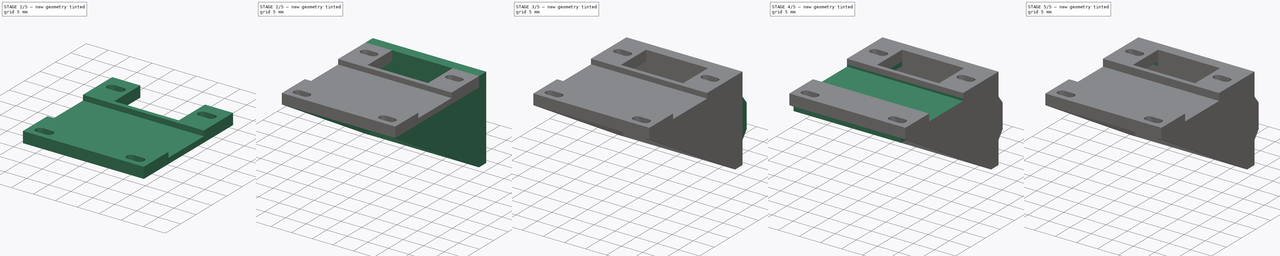
[diagram: build sequence overview — one tinted view per stage of 5, left to right]
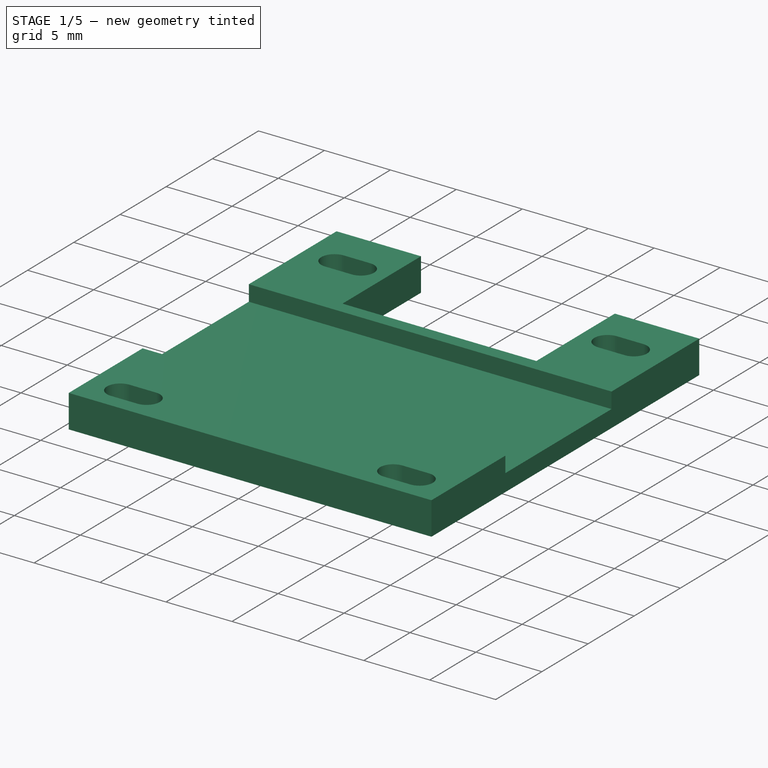
[diagram: stage 1 of 5 — iso view after this stage's code; geometry added in this stage tinted green]
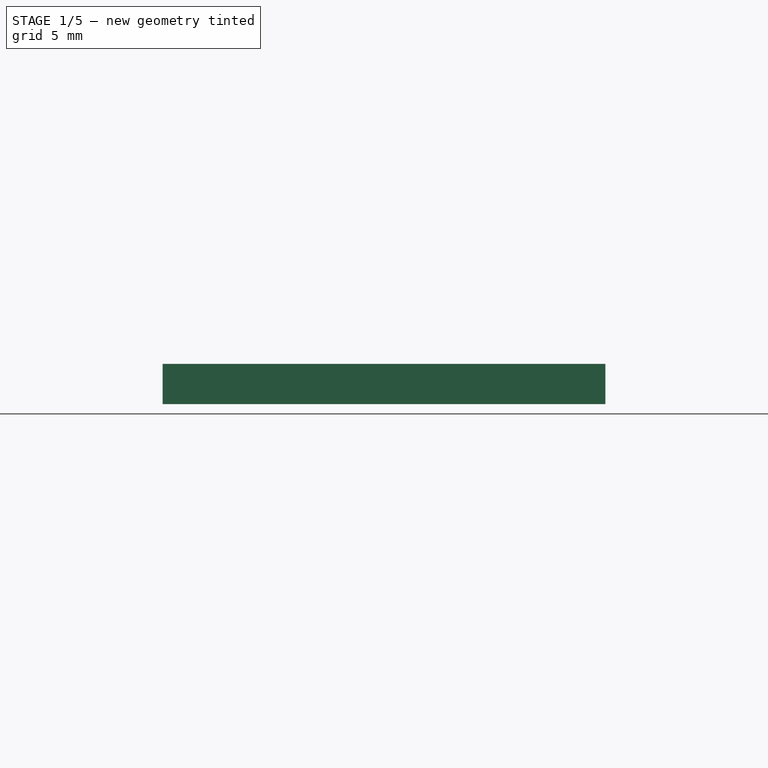
[diagram: stage 1 of 5 — front view after this stage's code; geometry added in this stage tinted green]
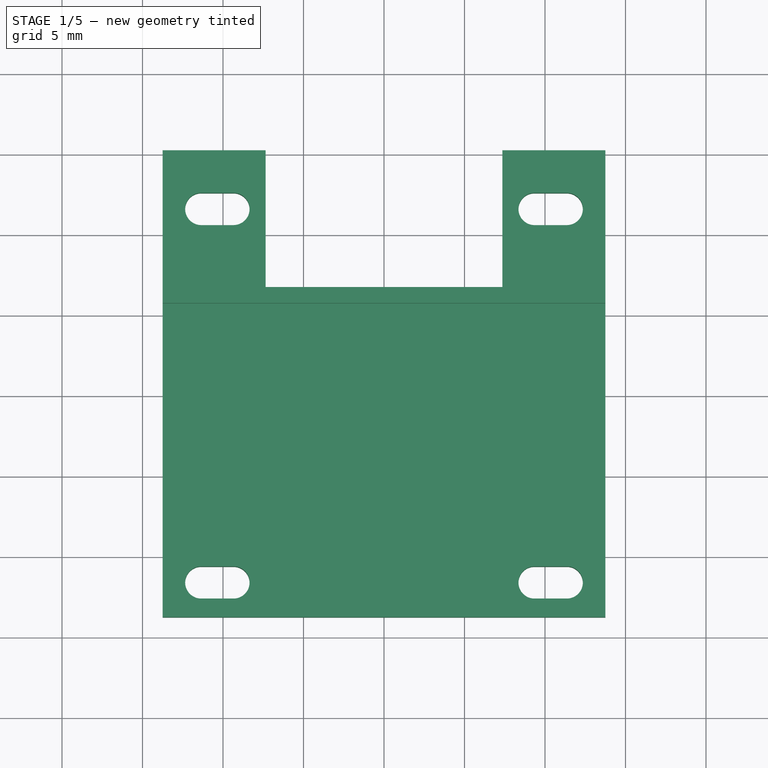
[diagram: stage 1 of 5 — top view after this stage's code; geometry added in this stage tinted green]
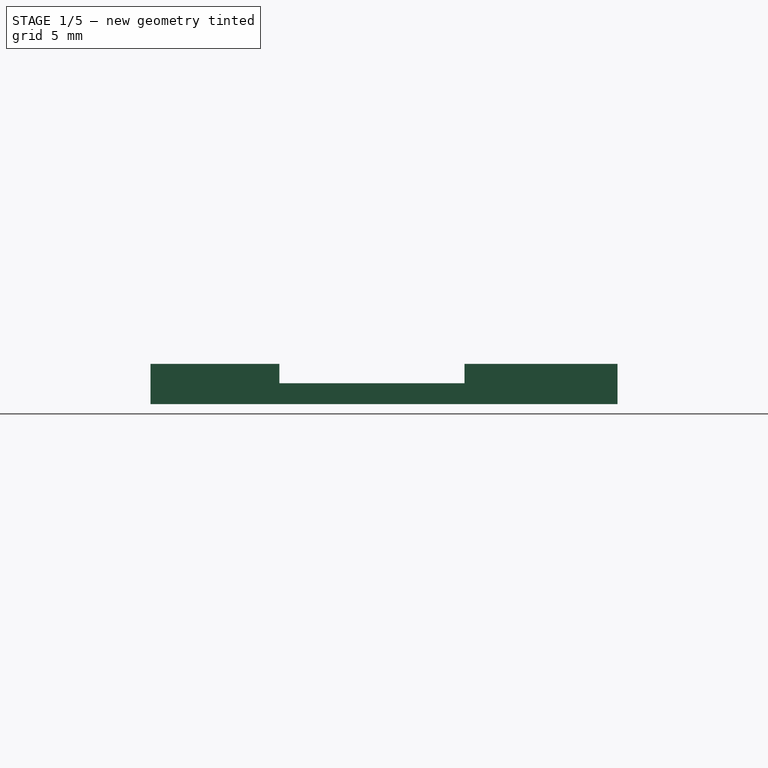
[diagram: stage 1 of 5 — right view after this stage's code; geometry added in this stage tinted green]
FCSTD DOCUMENT  (FreeCAD 0.20R29603 (Git))
Label: suporte-display-led
License: All rights reserved
LicenseURL: http://en.wikipedia.org/wiki/All_rights_reserved
objects: Sketcher::SketchObject×9, PartDesign::Pad×8, PartDesign::Pocket×6, PartDesign::Chamfer×1, PartDesign::Body×1
note: 40 computed .brp shape members not serialized (recipe doc carries the construction recipe); baked Part::Feature solids carry a one-line shape summary decoded from their .brp

FEATURE [Sketcher::SketchObject] Sketch
  FullyConstrained = true
  MapMode = 5
  Support = -> [XY_Plane]
  sketch-geometry (36):
    g0: LineSegment StartX=13.75 StartY=13.75 StartZ=0 EndX=13.75 EndY=-13.75 EndZ=0
    g1: LineSegment StartX=13.75 StartY=-13.75 StartZ=0 EndX=-13.75 EndY=-13.75 EndZ=0
    g2: LineSegment StartX=-13.75 StartY=-13.75 StartZ=0 EndX=-13.75 EndY=13.75 EndZ=0
    g3: LineSegment StartX=-13.75 StartY=13.75 StartZ=0 EndX=-7.35 EndY=13.75 EndZ=0
    g4: LineSegment StartX=-7.35 StartY=13.75 StartZ=0 EndX=-7.35 EndY=6.75 EndZ=0
    g5: LineSegment StartX=-7.35 StartY=6.75 StartZ=0 EndX=7.35 EndY=6.75 EndZ=0
    g6: LineSegment StartX=7.35 StartY=6.75 StartZ=0 EndX=7.35 EndY=13.75 EndZ=0
    g7: LineSegment StartX=7.35 StartY=13.75 StartZ=0 EndX=13.75 EndY=13.75 EndZ=0
    g8: ArcOfCircle CenterX=-11.35 CenterY=11.6 CenterZ=0 NormalX=0 NormalY=0 NormalZ=1 AngleXU=0 Radius=1 StartAngle=1.5708 EndAngle=4.71239
    g9: ArcOfCircle CenterX=-9.35 CenterY=11.6 CenterZ=0 NormalX=0 NormalY=0 NormalZ=1 AngleXU=0 Radius=1 StartAngle=4.71239 EndAngle=7.85398
    g10: LineSegment StartX=-11.35 StartY=10.6 StartZ=0 EndX=-9.35 EndY=10.6 EndZ=0
    g11: LineSegment StartX=-9.35 StartY=12.6 StartZ=0 EndX=-11.35 EndY=12.6 EndZ=0
    g12: ArcOfCircle CenterX=9.35 CenterY=11.6 CenterZ=0 NormalX=0 NormalY=0 NormalZ=1 AngleXU=0 Radius=1 StartAngle=1.5708 EndAngle=4.71239
    g13: ArcOfCircle CenterX=11.35 CenterY=11.6 CenterZ=0 NormalX=0 NormalY=0 NormalZ=1 AngleXU=0 Radius=1 StartAngle=4.71239 EndAngle=7.85398
    g14: LineSegment StartX=9.35 StartY=10.6 StartZ=0 EndX=11.35 EndY=10.6 EndZ=0
    g15: LineSegment StartX=11.35 StartY=12.6 StartZ=0 EndX=9.35 EndY=12.6 EndZ=0
    g16: ArcOfCircle CenterX=-11.35 CenterY=-11.6 CenterZ=0 NormalX=0 NormalY=0 NormalZ=1 AngleXU=0 Radius=1 StartAngle=1.5708 EndAngle=4.71239
    g17: ArcOfCircle CenterX=-9.35 CenterY=-11.6 CenterZ=0 NormalX=0 NormalY=0 NormalZ=1 AngleXU=0 Radius=1 StartAngle=4.71239 EndAngle=7.85398
    g18: LineSegment StartX=-11.35 StartY=-12.6 StartZ=0 EndX=-9.35 EndY=-12.6 EndZ=0
    g19: LineSegment StartX=-9.35 StartY=-10.6 StartZ=0 EndX=-11.35 EndY=-10.6 EndZ=0
    g20: ArcOfCircle CenterX=9.35 CenterY=-11.6 CenterZ=0 NormalX=0 NormalY=0 NormalZ=1 AngleXU=0 Radius=1 StartAngle=1.5708 EndAngle=4.71239
    g21: ArcOfCircle CenterX=11.35 CenterY=-11.6 CenterZ=0 NormalX=0 NormalY=0 NormalZ=1 AngleXU=0 Radius=1 StartAngle=4.71239 EndAngle=7.85398
    g22: LineSegment StartX=9.35 StartY=-12.6 StartZ=0 EndX=11.35 EndY=-12.6 EndZ=0
    g23: LineSegment StartX=11.35 StartY=-10.6 StartZ=0 EndX=9.35 EndY=-10.6 EndZ=0
    g24: LineSegment StartX=-11.35 StartY=11.6 StartZ=0 EndX=-10.35 EndY=11.6 EndZ=0
    g25: LineSegment StartX=-10.35 StartY=11.6 StartZ=0 EndX=-9.35 EndY=11.6 EndZ=0
    g26: LineSegment StartX=-11.35 StartY=-11.6 StartZ=0 EndX=-10.35 EndY=-11.6 EndZ=0
    g27: LineSegment StartX=-10.35 StartY=-11.6 StartZ=0 EndX=-9.35 EndY=-11.6 EndZ=0
    g28: LineSegment StartX=9.35 StartY=-11.6 StartZ=0 EndX=10.35 EndY=-11.6 EndZ=0
    g29: LineSegment StartX=11.35 StartY=-11.6 StartZ=0 EndX=10.35 EndY=-11.6 EndZ=0
    g30: LineSegment StartX=9.35 StartY=11.6 StartZ=0 EndX=10.35 EndY=11.6 EndZ=0
    g31: LineSegment StartX=10.35 StartY=11.6 StartZ=0 EndX=11.35 EndY=11.6 EndZ=0
    g32: LineSegment StartX=-10.35 StartY=11.6 StartZ=0 EndX=10.35 EndY=11.6 EndZ=0
    g33: LineSegment StartX=10.35 StartY=11.6 StartZ=0 EndX=10.35 EndY=-11.6 EndZ=0
    g34: LineSegment StartX=10.35 StartY=-11.6 StartZ=0 EndX=-10.35 EndY=-11.6 EndZ=0
    g35: LineSegment StartX=-10.35 StartY=-11.6 StartZ=0 EndX=-10.35 EndY=11.6 EndZ=0
  constraints (90):
    c: Coincident(g0,g1)
    c: Coincident(g1,g2)
    c: Vertical(g0)
    c: Coincident(g3,g2)
    c: Horizontal(g3)
    c: Coincident(g4,g3)
    c: Vertical(g4)
    c: Coincident(g6,g5)
    c: Vertical(g6)
    c: Coincident(g7,g0)
    c: Horizontal(g7)
    c: Equal(g4,g6)
    c: Symmetric(g1,g0,g-2)
    c: Symmetric(g1,g2,g-1)
    c: Coincident(g5,g4)
    c: Coincident(g6,g7)
    c: Symmetric(g4,g5,g-2)
    c: DistanceY(g2,g2) = 27.5
    c: Equal(g1,g2)
    c: Tangent(g8,g10) = -1.5708
    c: Tangent(g10,g9) = -1.5708
    c: Tangent(g9,g11) = -1.5708
    c: Tangent(g11,g8) = -1.5708
    c: Equal(g8,g9)
    c: Horizontal(g10)
    c: Tangent(g12,g14) = -1.5708
    c: Tangent(g14,g13) = -1.5708
    c: Tangent(g13,g15) = -1.5708
    c: Tangent(g15,g12) = -1.5708
    c: Equal(g12,g13)
    c: Horizontal(g14)
    c: Tangent(g16,g18) = -1.5708
    c: Tangent(g18,g17) = -1.5708
    c: Tangent(g17,g19) = -1.5708
    c: Tangent(g19,g16) = -1.5708
    c: Equal(g16,g17)
    c: Tangent(g20,g22) = -1.5708
    c: Tangent(g22,g21) = -1.5708
    c: Tangent(g21,g23) = -1.5708
    c: Tangent(g23,g20) = -1.5708
    c: Equal(g20,g21)
    c: Horizontal(g22)
    c: Horizontal(g18)
    c: Equal(g8,g16)
    c: Equal(g16,g21)
    c: Equal(g21,g13)
    c: Coincident(g24,g8)
    c: Coincident(g25,g24)
    c: Coincident(g25,g9)
    c: Coincident(g26,g16)
    c: Coincident(g27,g26)
    c: Coincident(g27,g17)
    c: Coincident(g28,g20)
    c: Coincident(g29,g21)
    c: Coincident(g29,g28)
    c: Coincident(g30,g12)
    c: Coincident(g31,g30)
    c: Coincident(g31,g13)
    c: Equal(g31,g30)
    c: Equal(g30,g28)
    c: Equal(g28,g29)
    c: Equal(g29,g27)
    c: Equal(g27,g26)
    c: Equal(g26,g24)
    c: Equal(g24,g25)
    c: Horizontal(g30)
    c: Horizontal(g25)
    c: Horizontal(g27)
    c: Horizontal(g28)
    c: Coincident(g32,g33)
    c: Coincident(g33,g34)
    c: Coincident(g34,g35)
    c: Coincident(g35,g32)
    c: Horizontal(g32)
    c: Horizontal(g34)
    c: Vertical(g33)
    c: Vertical(g35)
    c: Coincident(g32,g24)
    c: PointOnObject(g30,g33)
    c: PointOnObject(g28,g34)
    c: PointOnObject(g28,g33)
    c: PointOnObject(g26,g34)
    c: Symmetric(g24,g30,g-2)
    c: Symmetric(g24,g26,g-1)
    c: DistanceY(g8,g8) = 2
    c: DistanceX(g11,g11) = 2
    c: DistanceX(g34,g34) = 20.7
    c: DistanceY(g33,g33) = 23.2
    c: DistanceX(g9,g3) = 2
    c: DistanceY(g4,g4) = 7
FEATURE [PartDesign::Pad] Pad
  Direction = (0,0,1)
  Length = 2.5
  Length2 = 10
  Profile = -> Sketch
  ReferenceAxis = -> Sketch [N_Axis]
  Type = 0
FEATURE [Sketcher::SketchObject] Sketch001
  ExternalGeometry = -> [Pad]
  FullyConstrained = true
  MapMode = 5
  Placement = pos=(0,0,2.5) rot=(0,0,1;0rad)
  Support = -> [Pad]
  sketch-geometry (4):
    g0: LineSegment StartX=-13.75 StartY=5.75 StartZ=0 EndX=13.75 EndY=5.75 EndZ=0
    g1: LineSegment StartX=13.75 StartY=5.75 StartZ=0 EndX=13.75 EndY=-5.75 EndZ=0
    g2: LineSegment StartX=13.75 StartY=-5.75 StartZ=0 EndX=-13.75 EndY=-5.75 EndZ=0
    g3: LineSegment StartX=-13.75 StartY=-5.75 StartZ=0 EndX=-13.75 EndY=5.75 EndZ=0
  constraints (10):
    c: Coincident(g0,g1)
    c: Coincident(g1,g2)
    c: Coincident(g2,g3)
    c: Coincident(g3,g0)
    c: Horizontal(g2)
    c: Vertical(g1)
    c: Symmetric(g0,g0,g-2)
    c: Symmetric(g0,g2,g-1)
    c: PointOnObject(g0,g-3)
    c: DistanceY(g3,g3) = 11.5
FEATURE [PartDesign::Pocket] Pocket
  BaseFeature = -> Pad
  Direction = (0,0,-1)
  Length = 1.2
  Length2 = 5
  Profile = -> Sketch001
  ReferenceAxis = -> Sketch001 [N_Axis]
  Type = 0
FEATURE [PartDesign::Pad] Pad001
  BaseFeature = -> Pocket
  Direction = (0,1,0)
  Length = 1.5
  Length2 = 10
  Profile = -> Pocket [Face9,Face11]
  Type = 0
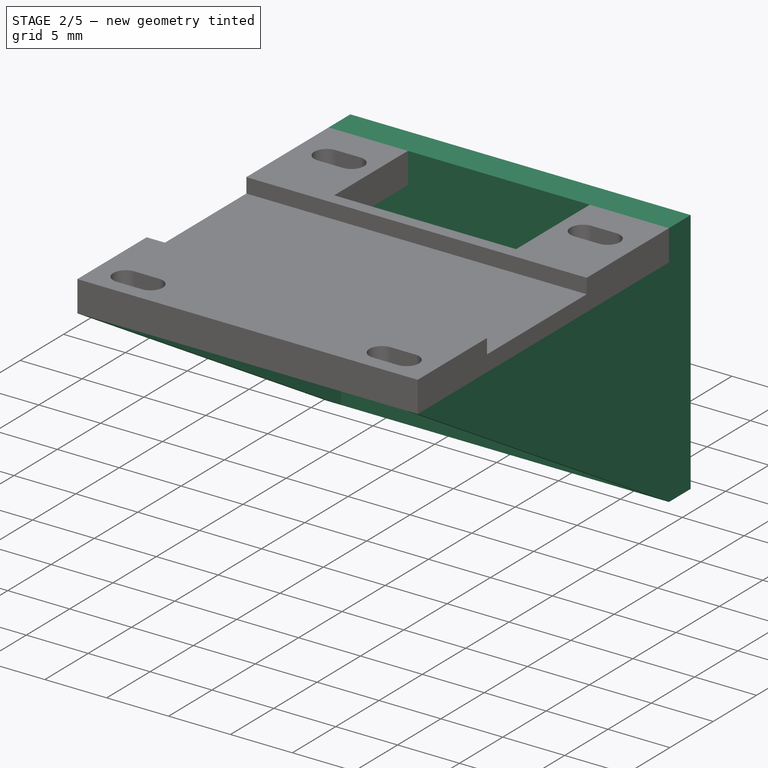
[diagram: stage 2 of 5 — iso view after this stage's code; geometry added in this stage tinted green]
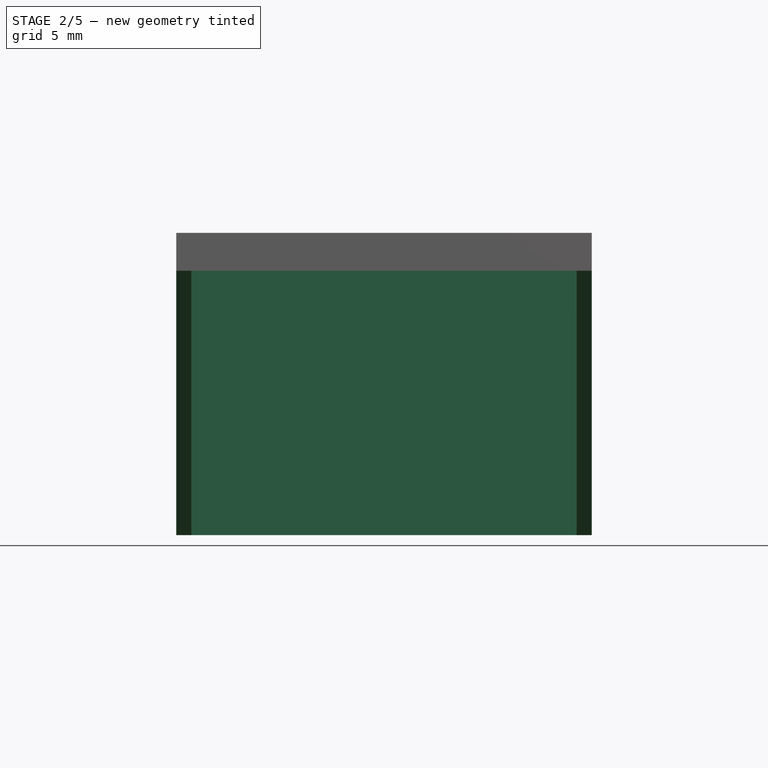
[diagram: stage 2 of 5 — front view after this stage's code; geometry added in this stage tinted green]
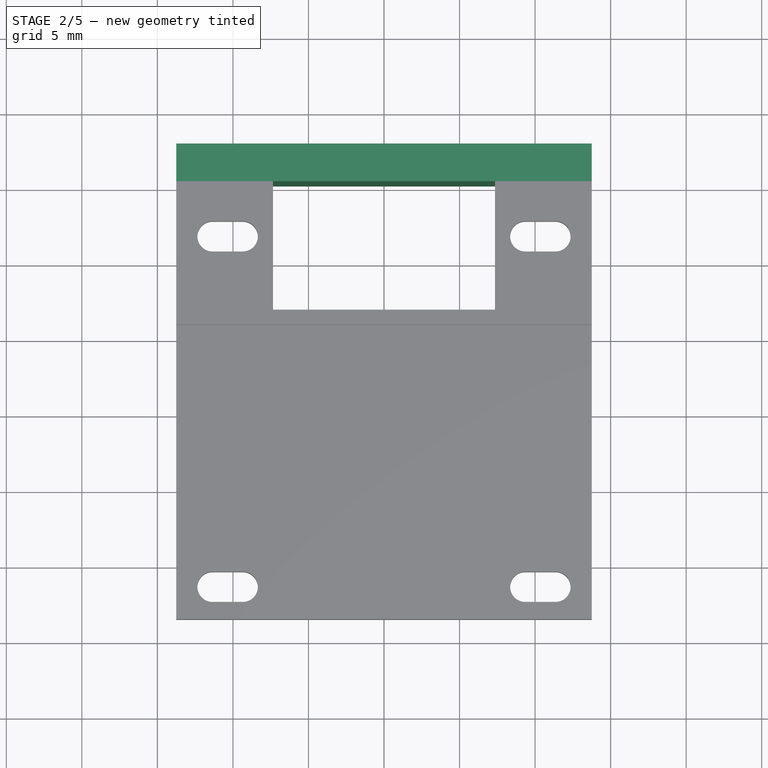
[diagram: stage 2 of 5 — top view after this stage's code; geometry added in this stage tinted green]
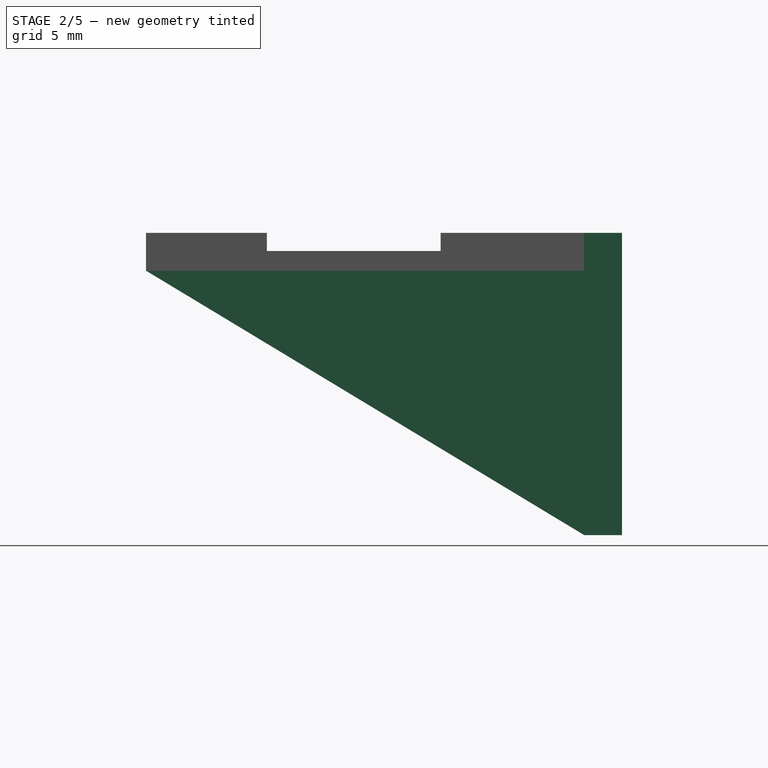
[diagram: stage 2 of 5 — right view after this stage's code; geometry added in this stage tinted green]
FEATURE [Sketcher::SketchObject] Sketch003
  ExternalGeometry = -> [Pad001]
  FullyConstrained = true
  MapMode = 5
  Placement = pos=(0,0,2.5) rot=(0,0,1;0rad)
  Support = -> [Pad001]
  sketch-geometry (4):
    g0: LineSegment StartX=-13.75 StartY=15.25 StartZ=0 EndX=13.75 EndY=15.25 EndZ=0
    g1: LineSegment StartX=13.75 StartY=15.25 StartZ=0 EndX=13.75 EndY=17.75 EndZ=0
    g2: LineSegment StartX=13.75 StartY=17.75 StartZ=0 EndX=-13.75 EndY=17.75 EndZ=0
    g3: LineSegment StartX=-13.75 StartY=17.75 StartZ=0 EndX=-13.75 EndY=15.25 EndZ=0
  constraints (10):
    c: Coincident(g0,g1)
    c: Coincident(g1,g2)
    c: Coincident(g2,g3)
    c: Coincident(g3,g0)
    c: Horizontal(g2)
    c: Vertical(g1)
    c: Vertical(g3)
    c: Coincident(g0,g-3)
    c: Coincident(g0,g-4)
    c: DistanceY(g3,g3) = 2.5
FEATURE [PartDesign::Pad] Pad002
  BaseFeature = -> Pad001
  Direction = (0,0,1)
  Length = 20
  Length2 = 10
  Profile = -> Sketch003
  ReferenceAxis = -> Sketch003 [N_Axis]
  Reversed = true
  Type = 0
FEATURE [Sketcher::SketchObject] Sketch004
  ExternalGeometry = -> [Pad002]
  FullyConstrained = true
  MapMode = 5
  Placement = pos=(13.75,0,0) rot=(0.57735,0.57735,0.57735;2.0944rad)
  Support = -> [Pad002]
  sketch-geometry (3):
    g0: LineSegment StartX=-13.75 StartY=0 StartZ=0 EndX=15.25 EndY=-17.5 EndZ=0
    g1: LineSegment StartX=-13.75 StartY=0 StartZ=0 EndX=15.25 EndY=0 EndZ=0
    g2: LineSegment StartX=15.25 StartY=0 StartZ=0 EndX=15.25 EndY=-17.5 EndZ=0
  constraints (6):
    c: Coincident(g0,g-3)
    c: Coincident(g0,g-4)
    c: Coincident(g2,g0)
    c: Coincident(g2,g-4)
    c: Coincident(g1,g2)
    c: Coincident(g1,g0)
FEATURE [PartDesign::Pad] Pad003
  BaseFeature = -> Pad002
  Direction = (1,0,0)
  Length = 1
  Length2 = 10
  Profile = -> Sketch004
  ReferenceAxis = -> Sketch004 [N_Axis]
  Reversed = true
  Type = 0
FEATURE [Sketcher::SketchObject] Sketch005
  ExternalGeometry = -> [Pad003]
  FullyConstrained = true
  MapMode = 5
  Placement = pos=(-13.75,0,0) rot=(0.57735,-0.57735,-0.57735;2.0944rad)
  Support = -> [Pad003]
  sketch-geometry (3):
    g0: LineSegment StartX=-15.25 StartY=0 StartZ=0 EndX=-15.25 EndY=-17.5 EndZ=0
    g1: LineSegment StartX=-15.25 StartY=-17.5 StartZ=0 EndX=13.75 EndY=0 EndZ=0
    g2: LineSegment StartX=13.75 StartY=0 StartZ=0 EndX=-15.25 EndY=0 EndZ=0
  constraints (6):
    c: Coincident(g0,g1)
    c: Coincident(g1,g2)
    c: Coincident(g2,g0)
    c: Coincident(g0,g-4)
    c: Coincident(g1,g-3)
    c: Coincident(g0,g-4)
FEATURE [PartDesign::Pad] Pad004
  BaseFeature = -> Pad003
  Direction = (-1,0,0)
  Length = 1
  Length2 = 10
  Profile = -> Sketch005
  ReferenceAxis = -> Sketch005 [N_Axis]
  Reversed = true
  Type = 0
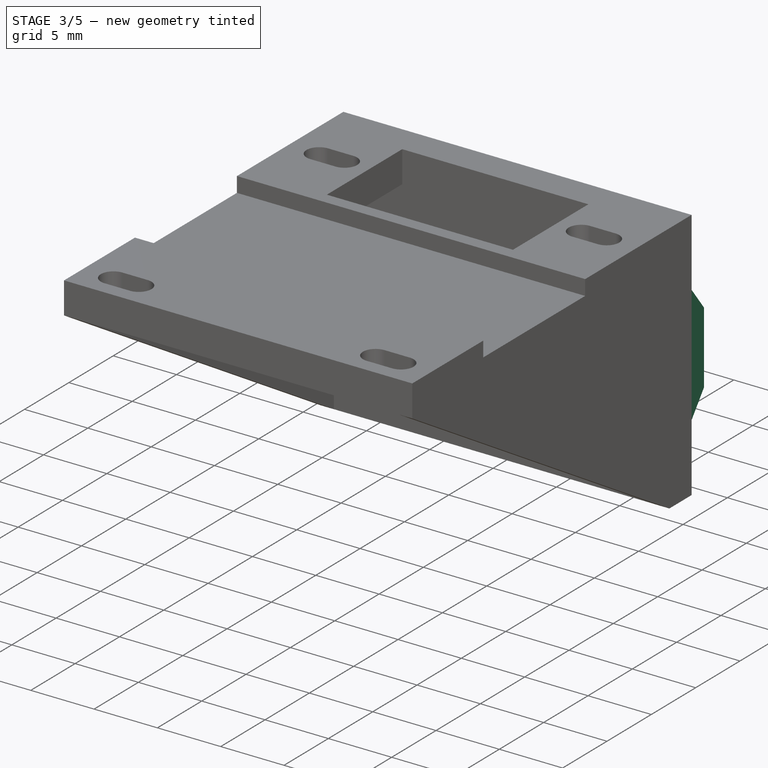
[diagram: stage 3 of 5 — iso view after this stage's code; geometry added in this stage tinted green]
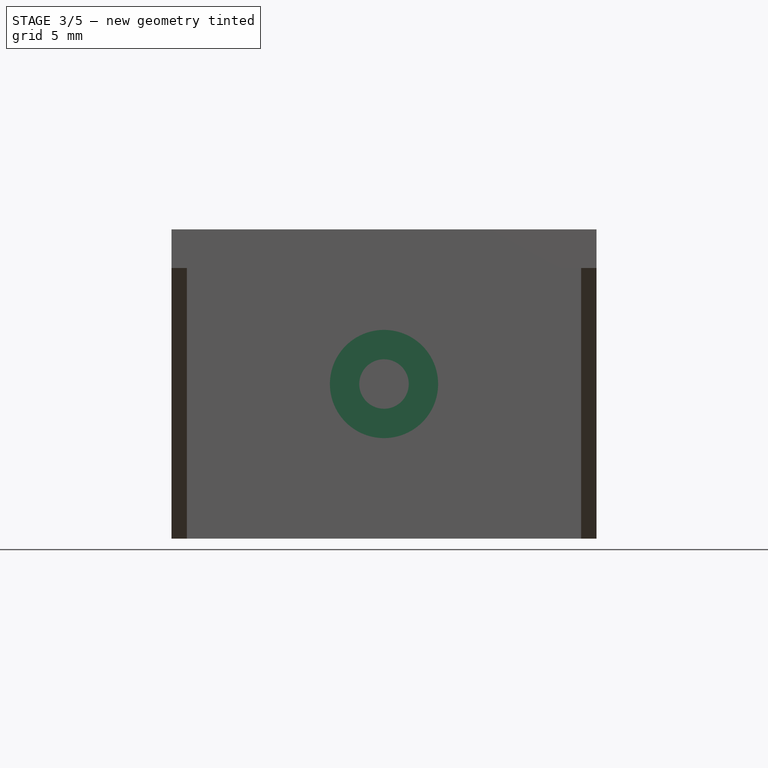
[diagram: stage 3 of 5 — front view after this stage's code; geometry added in this stage tinted green]
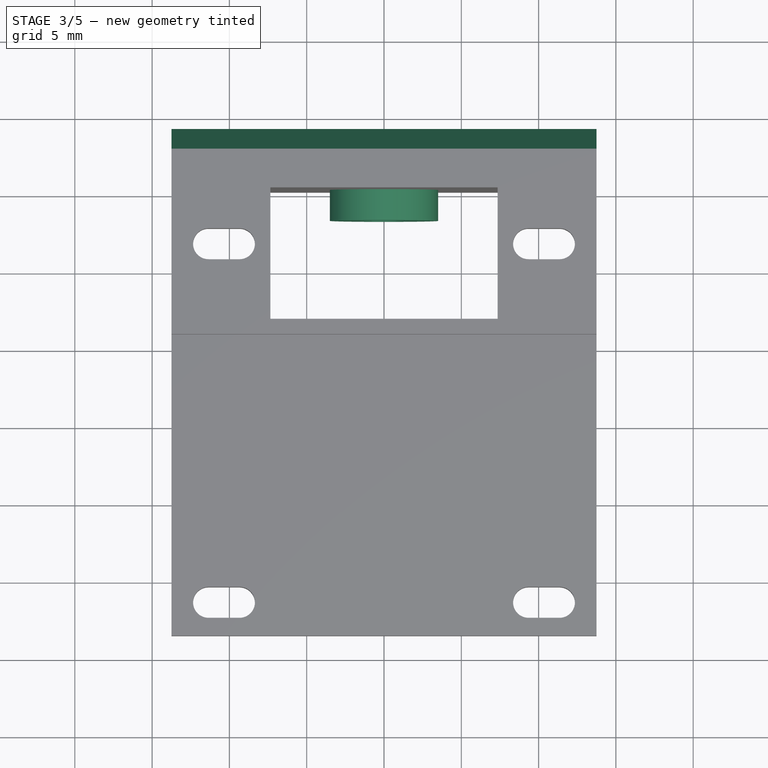
[diagram: stage 3 of 5 — top view after this stage's code; geometry added in this stage tinted green]
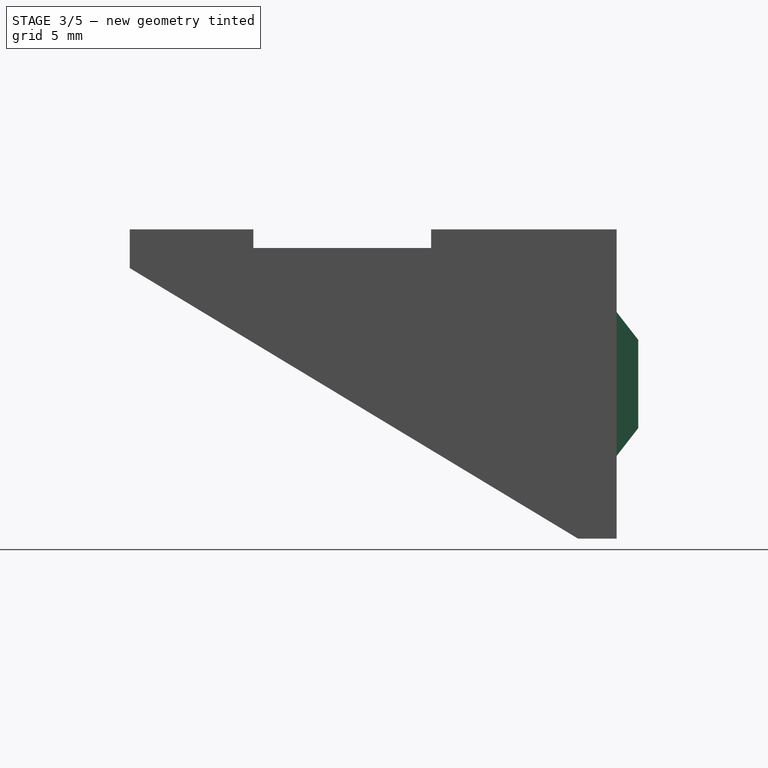
[diagram: stage 3 of 5 — right view after this stage's code; geometry added in this stage tinted green]
FEATURE [Sketcher::SketchObject] Sketch006
  ExternalGeometry = -> [Pad004]
  FullyConstrained = true
  MapMode = 5
  Placement = pos=(0,17.75,0) rot=(0,0.707107,0.707107;3.14159rad)
  Support = -> [Pad004]
  sketch-geometry (3):
    g0: LineSegment StartX=-1.07e-14 StartY=2.5 StartZ=0 EndX=-1.07e-14 EndY=-17.5 EndZ=0
    g1: LineSegment StartX=-13.75 StartY=-7.5 StartZ=0 EndX=13.75 EndY=-7.5 EndZ=0
    g2: Circle CenterX=-1.07e-14 CenterY=-7.5 CenterZ=0 NormalX=0 NormalY=0 NormalZ=1 AngleXU=0 Radius=1.6
  constraints (9):
    c: Symmetric(g-4,g-3,g1)
    c: Symmetric(g-4,g-4,g0)
    c: Horizontal(g0,g-3)
    c: PointOnObject(g0,g-4)
    c: PointOnObject(g1,g-3)
    c: Vertical(g1,g-4)
    c: PointOnObject(g2,g0)
    c: PointOnObject(g2,g1)
    c: Diameter(g2) = 3.2
FEATURE [PartDesign::Pocket] Pocket001
  BaseFeature = -> Pad004
  Direction = (0,-1,2e-16)
  Length = 5
  Length2 = 5
  Profile = -> Sketch006
  ReferenceAxis = -> Sketch006 [N_Axis]
  Type = 1
FEATURE [Sketcher::SketchObject] Sketch007
  ExternalGeometry = -> [Pocket001]
  FullyConstrained = true
  MapMode = 5
  Placement = pos=(0,15.25,0) rot=(1,0,0;1.5708rad)
  Support = -> [Pocket001]
  sketch-geometry (2):
    g0: Circle CenterX=0 CenterY=-7.5 CenterZ=0 NormalX=0 NormalY=0 NormalZ=1 AngleXU=0 Radius=3.5
    g1: Circle CenterX=0 CenterY=-7.5 CenterZ=0 NormalX=0 NormalY=0 NormalZ=1 AngleXU=0 Radius=1.6
  constraints (4):
    c: Coincident(g0,g-3)
    c: Coincident(g1,g0)
    c: Equal(g-3,g1)
    c: Diameter(g0) = 7
FEATURE [PartDesign::Pad] Pad005
  BaseFeature = -> Pocket001
  Direction = (0,-1,2e-16)
  Length = 2
  Length2 = 10
  Profile = -> Sketch007
  ReferenceAxis = -> Sketch007 [N_Axis]
  Type = 0
FEATURE [Sketcher::SketchObject] Sketch008
  ExternalGeometry = -> [Pad005]
  FullyConstrained = true
  MapMode = 5
  Placement = pos=(-13.75,0,0) rot=(0.57735,-0.57735,-0.57735;2.0944rad)
  Support = -> [Pad005]
  sketch-geometry (5):
    g0: LineSegment StartX=-17.75 StartY=-2.85 StartZ=0 EndX=-17.75 EndY=-12.15 EndZ=0
    g1: LineSegment StartX=-17.75 StartY=-12.15 StartZ=0 EndX=-19.15 EndY=-10.35 EndZ=0
    g2: LineSegment StartX=-19.15 StartY=-10.35 StartZ=0 EndX=-19.15 EndY=-4.65 EndZ=0
    g3: LineSegment StartX=-19.15 StartY=-4.65 StartZ=0 EndX=-17.75 EndY=-2.85 EndZ=0
    g4: LineSegment StartX=-19.15 StartY=-7.5 StartZ=0 EndX=-17.75 EndY=-7.5 EndZ=0
  constraints (14):
    c: Coincident(g0,g1)
    c: Coincident(g1,g2)
    c: Coincident(g2,g3)
    c: Coincident(g3,g0)
    c: PointOnObject(g0,g-3)
    c: Vertical(g2)
    c: DistanceY(g2,g2) = 5.7
    c: DistanceY(g0,g0) = 9.3
    c: DistanceX(g1,g0) = 1.4
    c: Equal(g1,g3)
    c: Symmetric(g-3,g-3,g4)
    c: Symmetric(g0,g0,g4)
    c: PointOnObject(g4,g2)
    c: PointOnObject(g4,g-3)
FEATURE [PartDesign::Pad] Pad006
  BaseFeature = -> Pad005
  Direction = (-1,0,0)
  Length = 10
  Length2 = 10
  Profile = -> Sketch008
  ReferenceAxis = -> Sketch008 [N_Axis]
  Type = 3
  UpToFace = -> Pad005 [Face11]
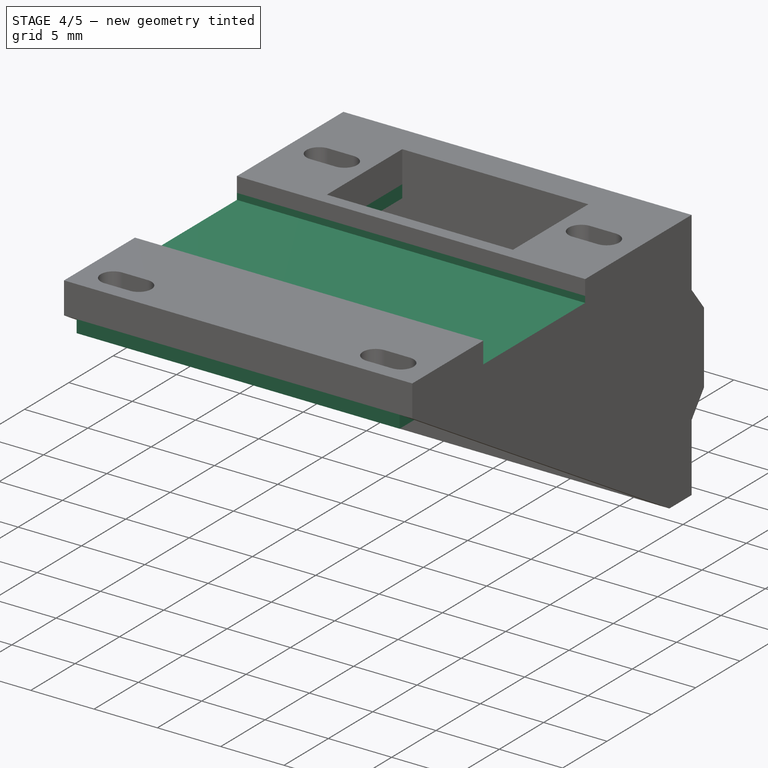
[diagram: stage 4 of 5 — iso view after this stage's code; geometry added in this stage tinted green]
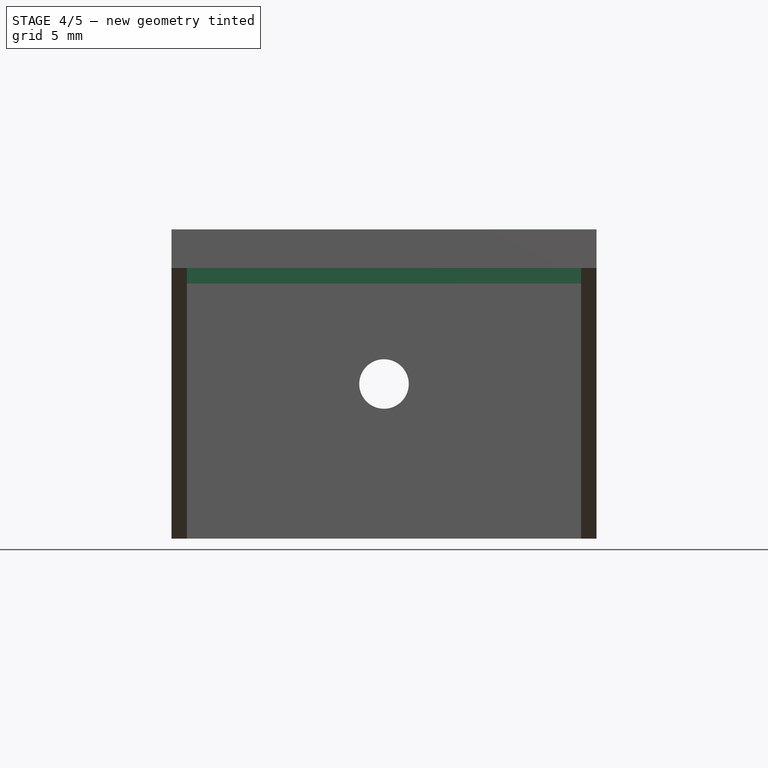
[diagram: stage 4 of 5 — front view after this stage's code; geometry added in this stage tinted green]
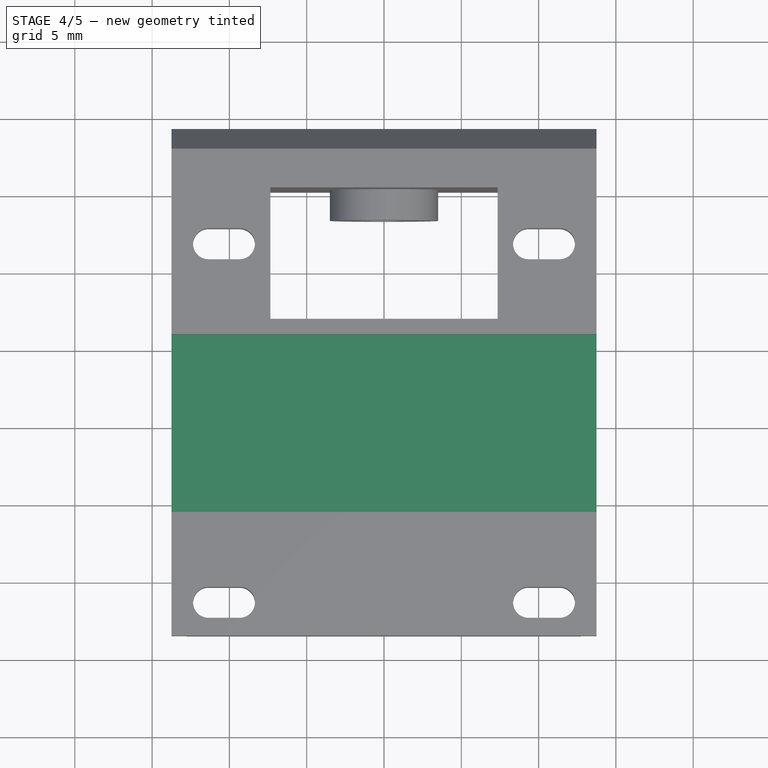
[diagram: stage 4 of 5 — top view after this stage's code; geometry added in this stage tinted green]
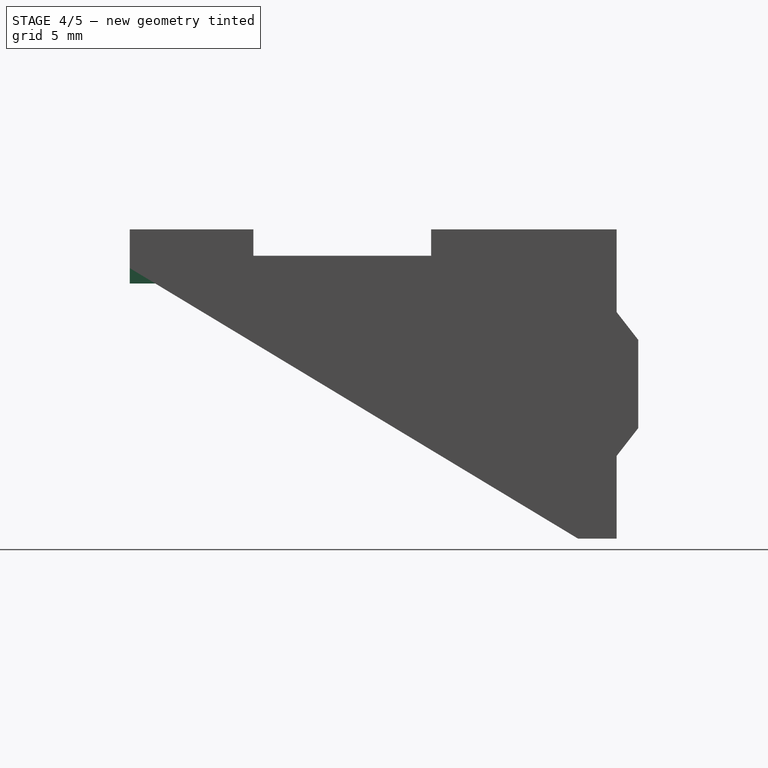
[diagram: stage 4 of 5 — right view after this stage's code; geometry added in this stage tinted green]
FEATURE [PartDesign::Pocket] Pocket002
  BaseFeature = -> Pad006
  Direction = (0,1,0)
  Length = 5
  Length2 = 5
  Profile = -> Pad006 [Face59]
  Type = 1
FEATURE [PartDesign::Pad] Pad007
  BaseFeature = -> Pocket002
  Direction = (0,0,-1)
  Length = 1
  Length2 = 10
  Profile = -> Pocket002 [Face46,Face13,Face45]
  Type = 0
FEATURE [PartDesign::Pocket] Pocket003
  BaseFeature = -> Pad007
  Direction = (0,0,-1)
  Length = 0.5
  Length2 = 5
  Profile = -> Pad007 [Face6]
  Type = 0
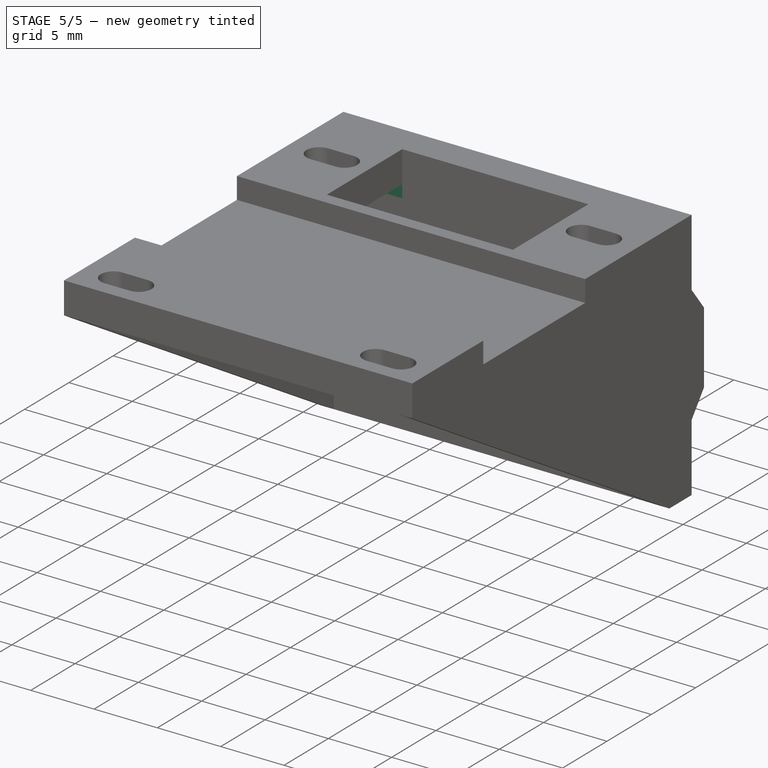
[diagram: stage 5 of 5 — iso view after this stage's code; geometry added in this stage tinted green]
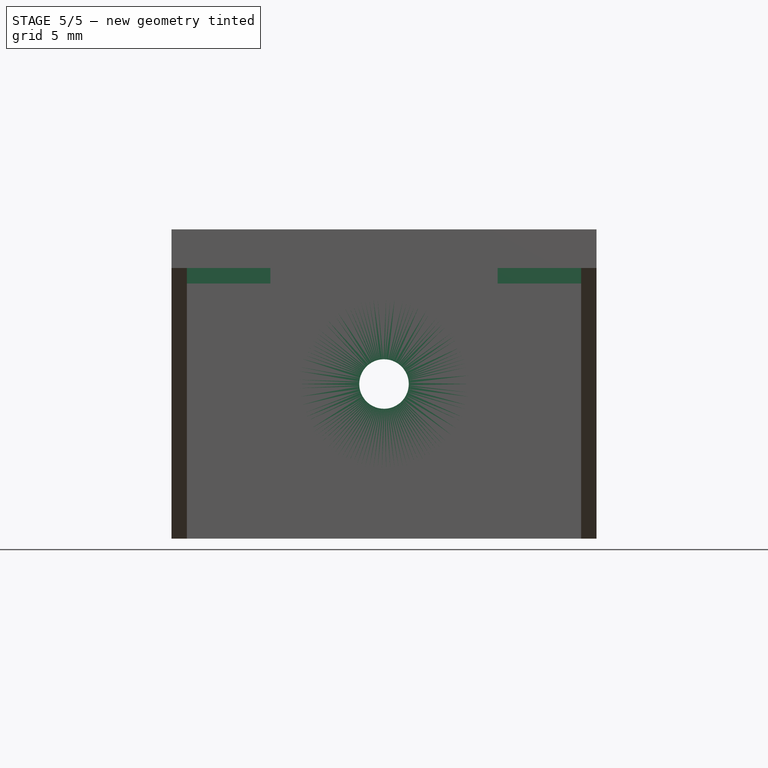
[diagram: stage 5 of 5 — front view after this stage's code; geometry added in this stage tinted green]
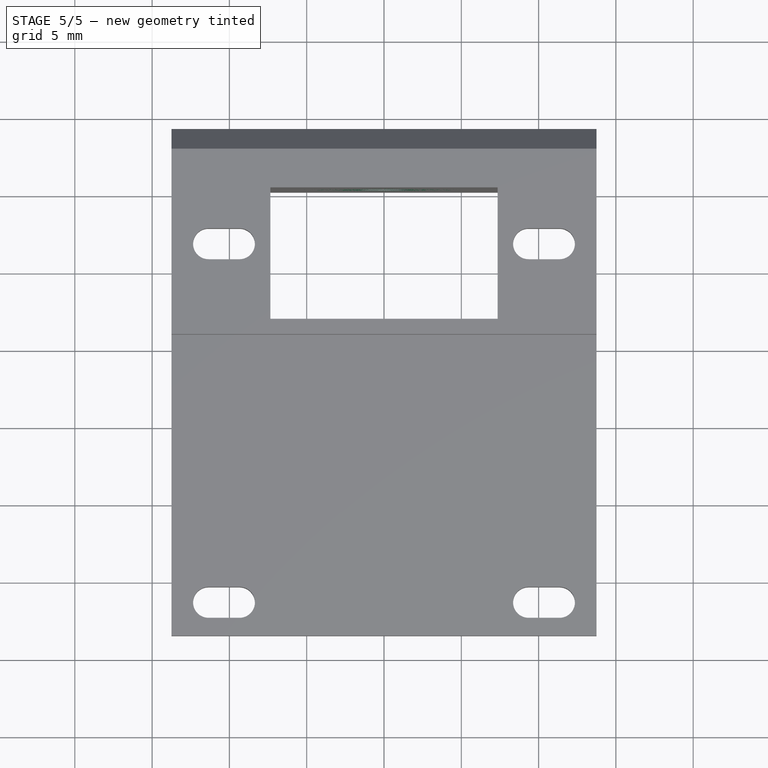
[diagram: stage 5 of 5 — top view after this stage's code; geometry added in this stage tinted green]
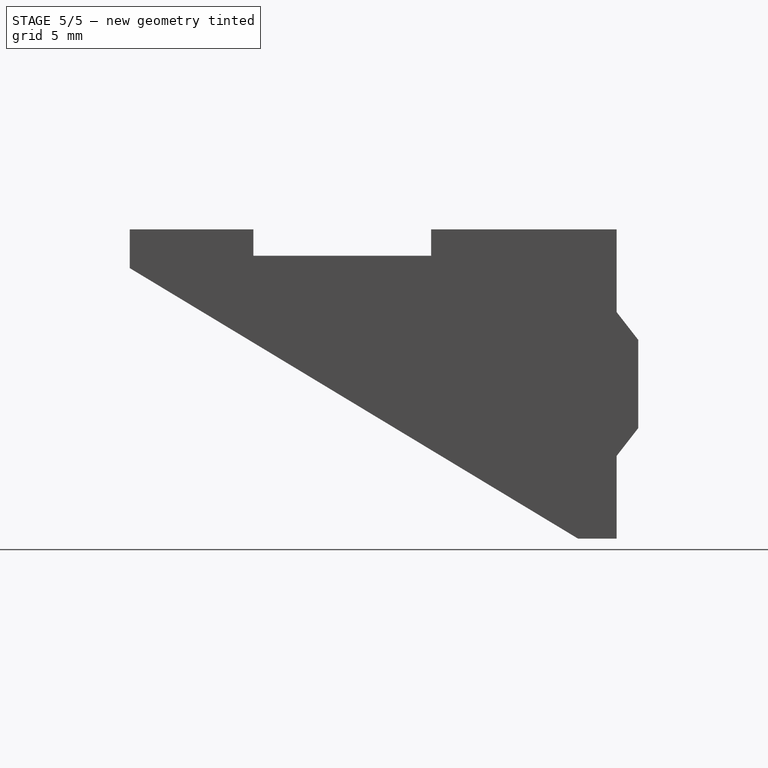
[diagram: stage 5 of 5 — right view after this stage's code; geometry added in this stage tinted green]
FEATURE [PartDesign::Chamfer] Chamfer
  Angle = 45
  Base = -> Pocket003 [Edge189]
  BaseFeature = -> Pocket003
  ChamferType = 0
  FlipDirection = false
  Size = 1.99
  Size2 = 1
  SupportTransform = false
  UseAllEdges = false
FEATURE [PartDesign::Pocket] Pocket004
  BaseFeature = -> Chamfer
  Direction = (0,0,1)
  Length = 1
  Length2 = 5
  Profile = -> Chamfer [Face22,Edge27,Face7,Face11]
  Type = 0
FEATURE [Sketcher::SketchObject] Sketch009
  ExternalGeometry = -> [Pocket004]
  FullyConstrained = true
  MapMode = 5
  Placement = pos=(0,13.25,0) rot=(1,0,0;1.5708rad)
  Support = -> [Pocket004]
  sketch-geometry (1):
    g0: Circle CenterX=0 CenterY=-7.5 CenterZ=0 NormalX=0 NormalY=0 NormalZ=1 AngleXU=0 Radius=5.49
  constraints (2):
    c: Coincident(g0,g-3)
    c: Equal(g0,g-3)
FEATURE [PartDesign::Pocket] Pocket005
  BaseFeature = -> Pocket004
  Direction = (0,1,-2e-16)
  Length = 0
  Length2 = 5
  Profile = -> Sketch009
  ReferenceAxis = -> Sketch009 [N_Axis]
  Type = 3
  UpToFace = -> Pocket004 [Face1]
FEATURE [PartDesign::Body] Body
  Group = -> [Sketch,Pad,Sketch001,Pocket,Pad001,Sketch003,Pad002,Sketch004,Pad003,Sketch005,Pad004,Sketch006,Pocket001,Sketch007,Pad005,Sketch008,Pad006,Pocket002,Pad007,Pocket003,Chamfer,Pocket004,Sketch009,Pocket005]
  Origin = -> Origin
  Tip = -> Pocket005
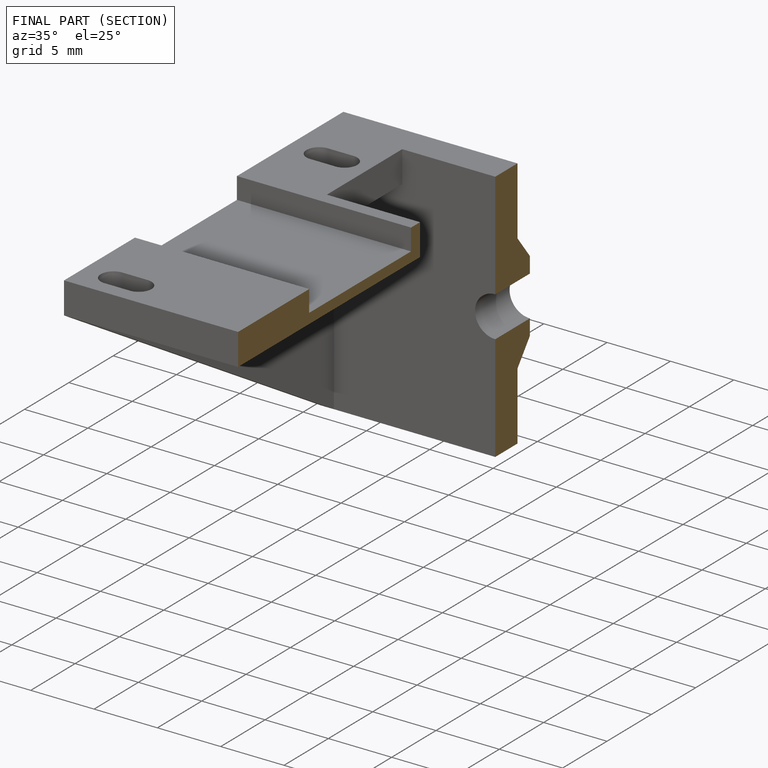
[diagram: finished part — half-section view (interior)]
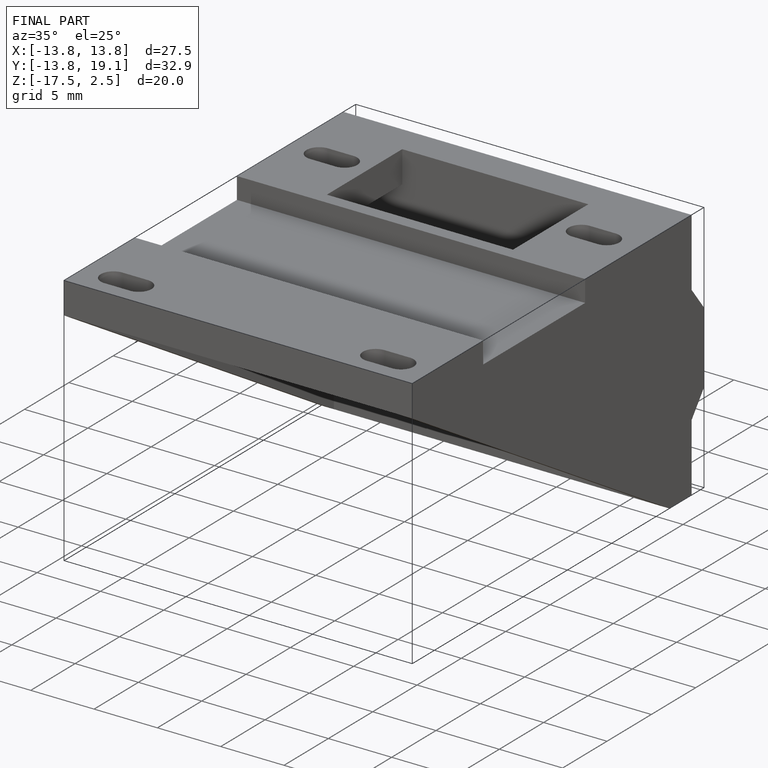
[diagram: finished part — iso view with bounding-box wireframe]
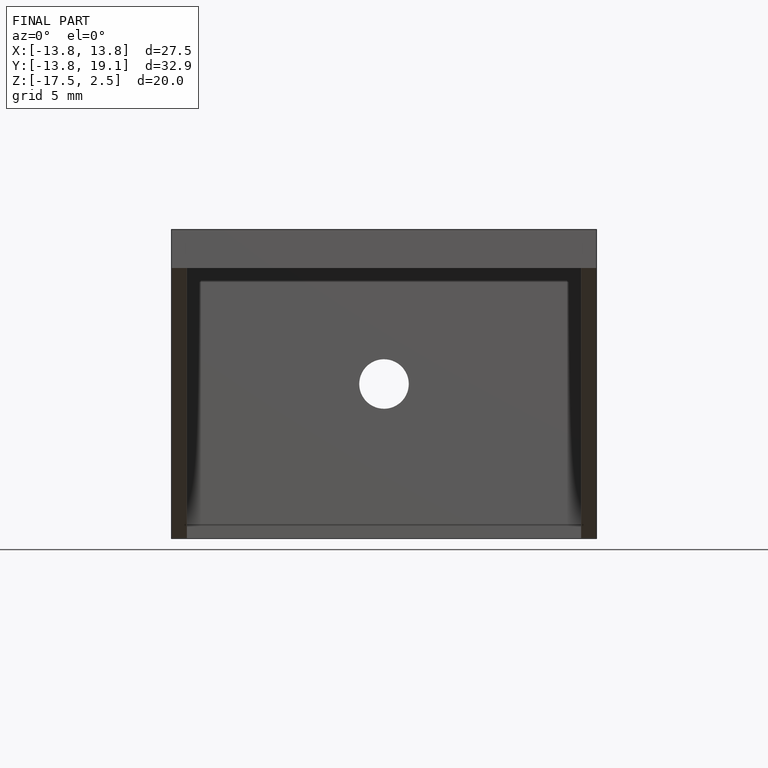
[diagram: finished part — front view with bounding-box wireframe]
